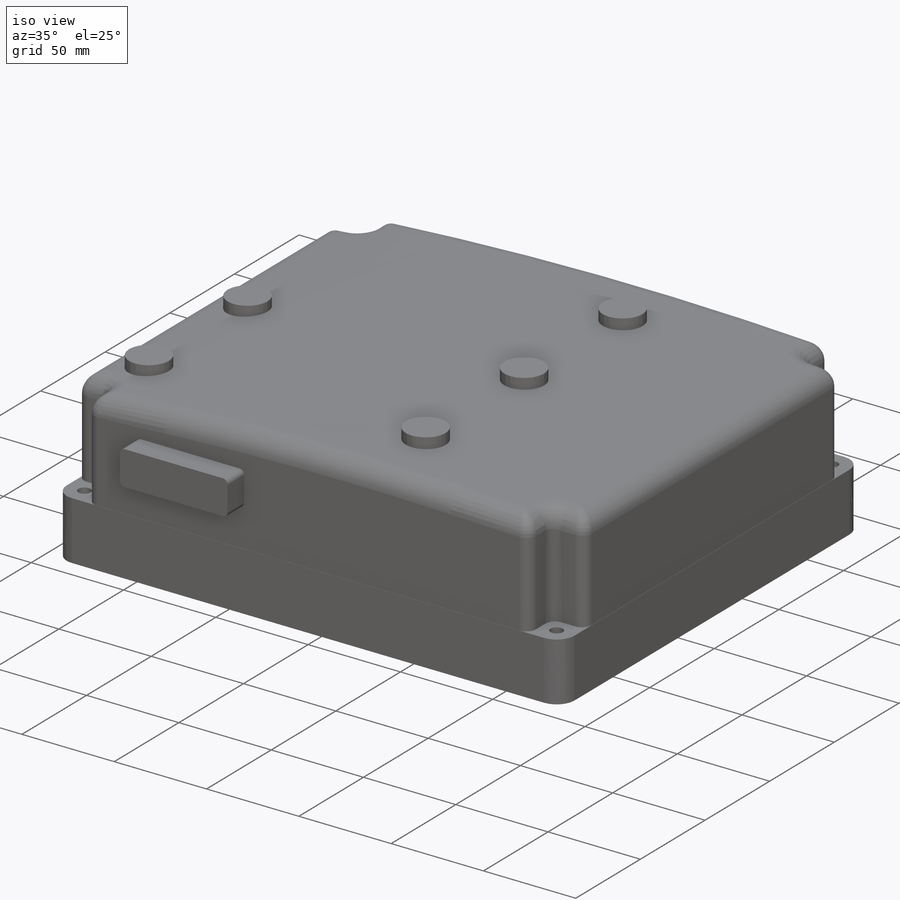
[diagram: iso view]
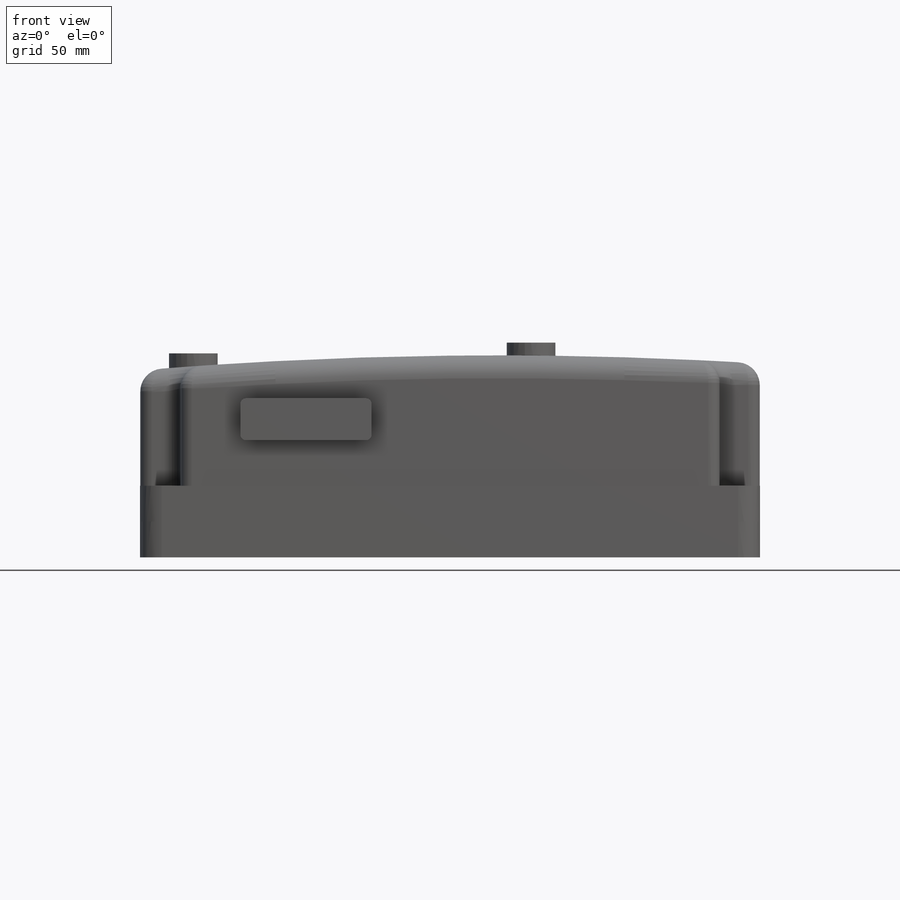
[diagram: front view]
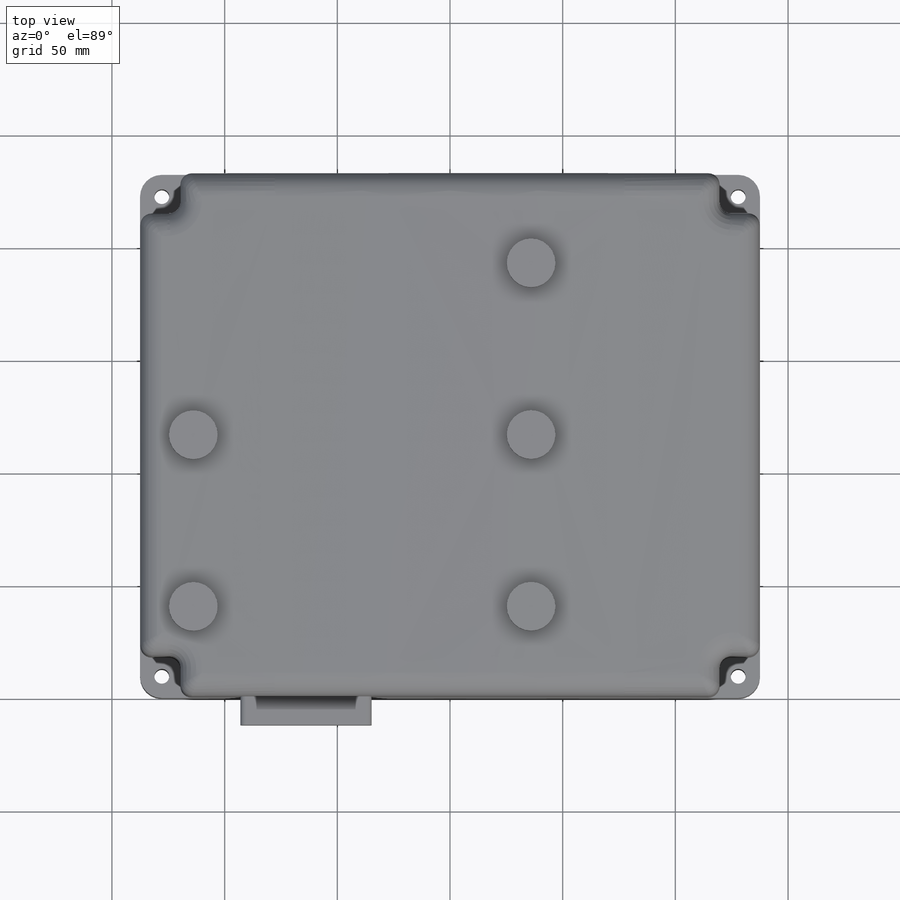
[diagram: top view]
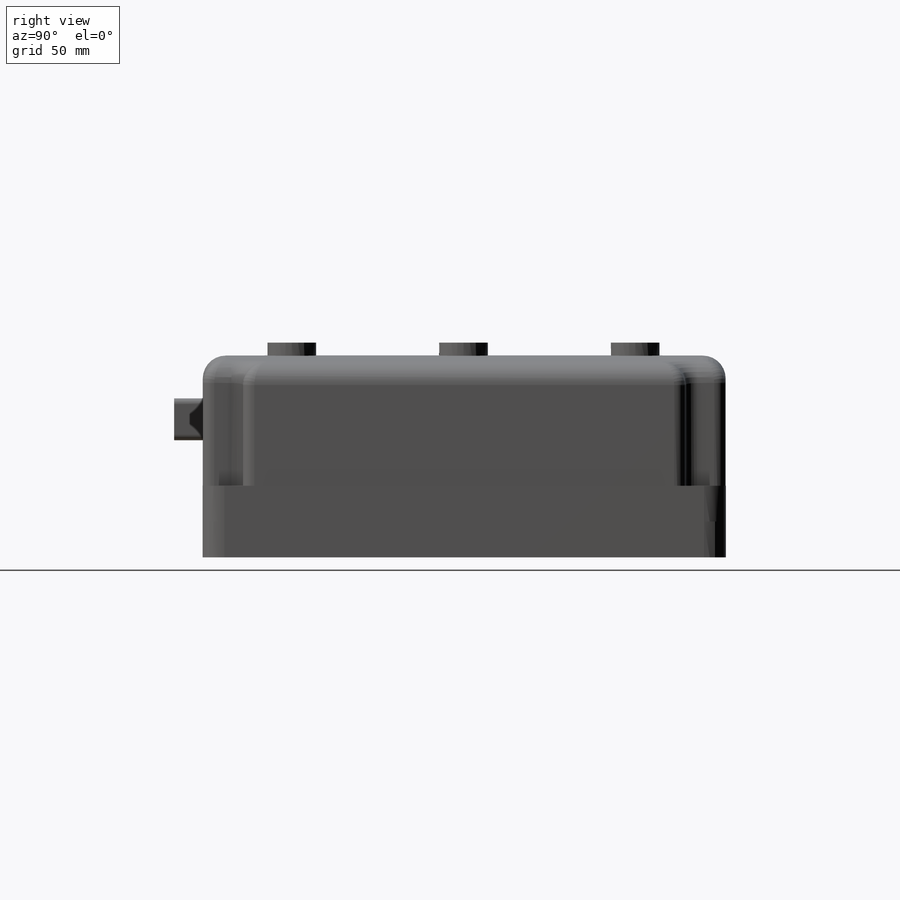
[diagram: right view]
SOLIDWORKS PART (.sldprt)
format: sldprt  version: not decoded by parser v0  size: 607,232 bytes
history: native  units: mm
features: sketch x7, extrude x5, cut_extrude x2, fillet x2, material x1 (+16 scaffold rows collapsed)
feature tree (33):
  scaffold x16  (default folders/planes/origin — collapsed)
  material  "Material <not specified>"
  sketch  "Sketch1"  dims[c1.D1=9.652mm c1.D2=6.604mm c1.D4=6.604mm c1.D8=6.604mm c1.D12=6.604mm c1.D14=7.366mm c1.D17=7.366mm c1.D21=7.366mm c1.D23=7.366mm c1.D28=9.652mm c1.D3=9.652mm c1.D5=9.652mm c1.D6=9.652mm c1.D7=9.652mm c1.D9=9.652mm c1.D10=9.652mm c1.D11=9.652mm c1.D13=9.652mm c1.D15=5.207mm c1.D16=23.749mm c1.D18=5.207mm c1.D19=23.749mm c1.D20=5.207mm c1.D22=23.749mm c1.D24=5.207mm c1.D25=23.749mm c1.D26=275.082mm c1.D27=232.156mm c2.D28=255.778mm c2.D7=9.652mm c3.D28=14.097mm]
  extrude  "Boss-Extrude1"  Depth=15.875mm
  sketch  "Sketch2"
  extrude  "Boss-Extrude2"  Depth=15.875mm
  sketch  "Sketch3"  dims[D1=17.78mm D2=17.78mm]
  extrude  "Boss-Extrude3"  Depth=60.96mm
  sketch  "Sketch4"
  cut_extrude  "Cut-Extrude1"  [1 undecoded]
  fillet  "Fillet1"  Radius=5.08mm
  fillet  "Fillet2"  Radius=10.16mm
  sketch  "Sketch5"  dims[D2=21.59mm D1=2.0 D3=3.0]
  extrude  "Boss-Extrude4"  Depth=63.5mm
  sketch  "Sketch6"  dims[D1=2.54mm]
  extrude  "Boss-Extrude5"  Depth=12.7mm
  sketch  "Sketch7"  dims[D1=0.0mm D2=0.0mm]
  cut_extrude  "Cut-Extrude2"  Depth=4.7625mm
decode coverage: 13 of 16 modeling features carry decoded parameters
note: 1 parameter value undecoded
note: suppression state not decoded; provenance and decode notes live in map.json
